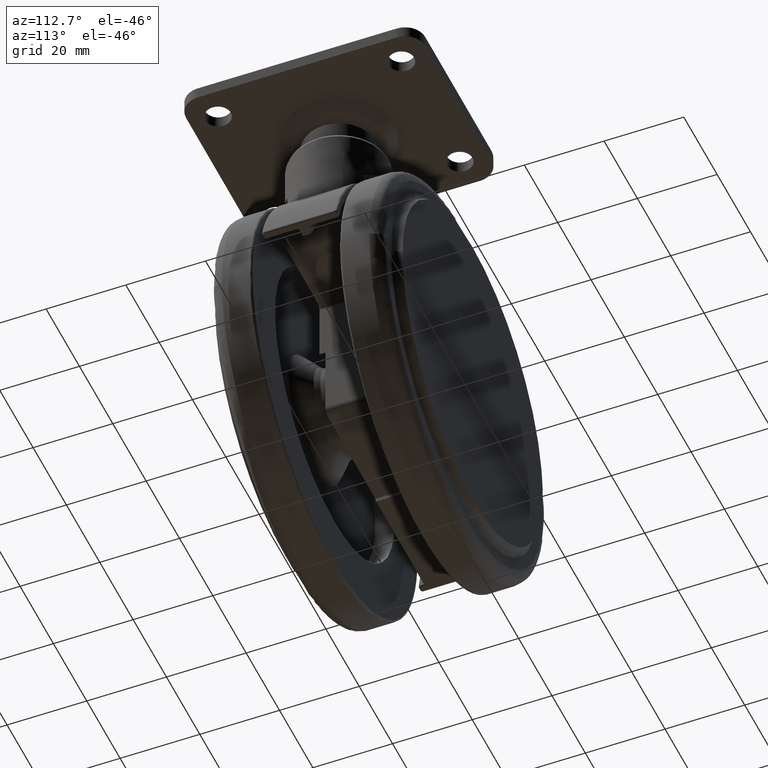
[diagram: clean part render]
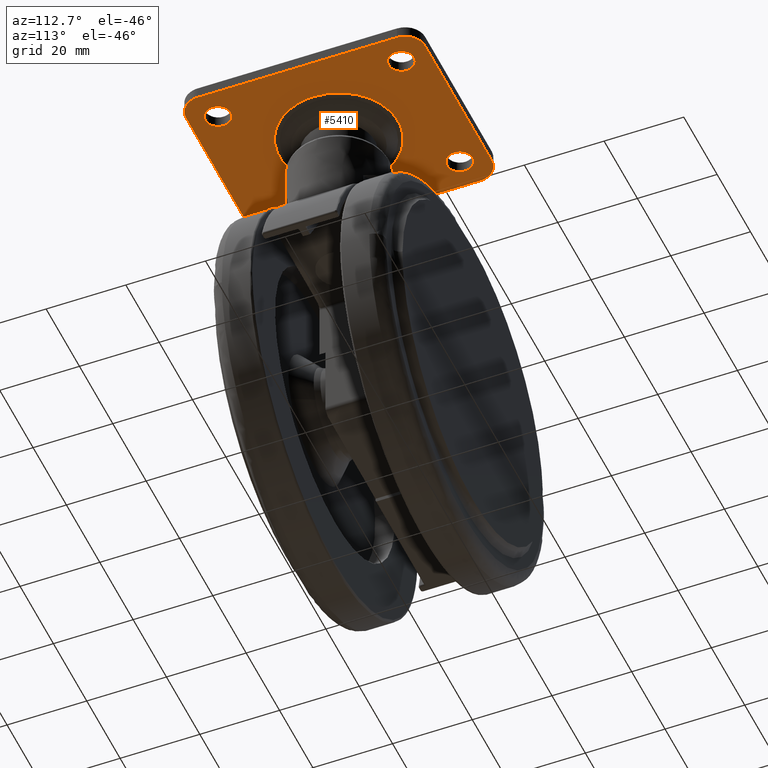
[diagram: same view with one face highlighted and labeled with its STEP entity id]
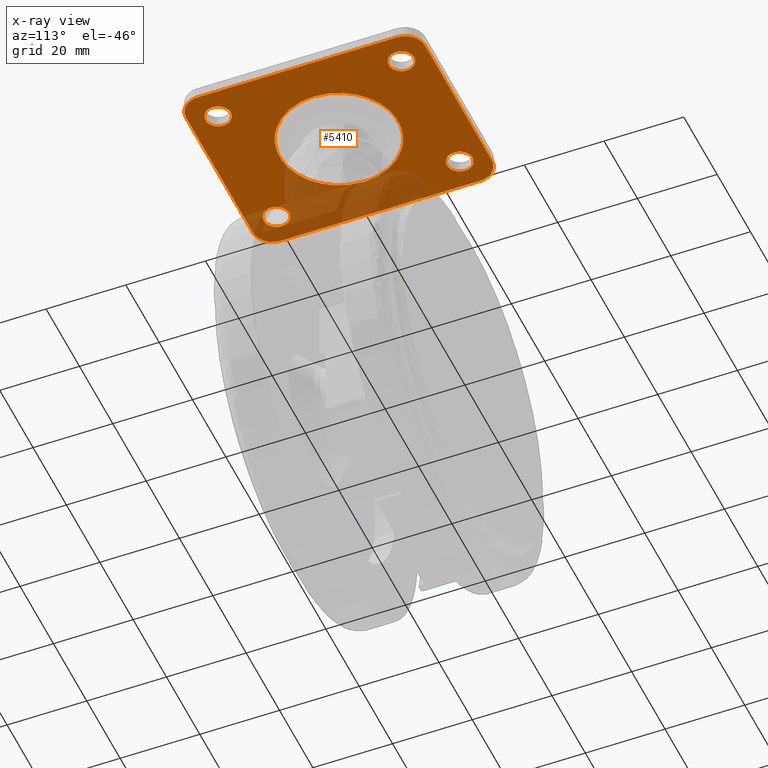
[diagram: x-ray of the same camera — body ghosted, the highlighted face saturated]
A machine part, auxiliary view. The second image highlights one B-rep face of the part: STEP entity #5410.
The next image is the same camera in x-ray: the body ghosted, the highlighted face saturated — about 22% of this face is hidden behind the body in this view.
In plain terms, the highlighted face is a freeform B-spline surface patch.
Its self-contained STEP definition (entity closure, byte-faithful):
#4139=CARTESIAN_POINT('',(-20.699999999999999,23.0,11.000000000000121));
#4140=VERTEX_POINT('',#4139);
#4141=CARTESIAN_POINT('',(-17.751069106818392,19.809864532092501,11.000000000000121));
#4142=VERTEX_POINT('',#4141);
#4143=CARTESIAN_POINT('',(-20.699999999999999,23.0,11.000000000000121));
#4144=CARTESIAN_POINT('',(-20.700000000000006,20.041950427148819,11.000000000000119));
#4145=CARTESIAN_POINT('',(-17.751069106818385,19.809864532092490,11.000000000000124));
#4153=(BOUNDED_CURVE()B_SPLINE_CURVE(2,(#4143,#4144,#4145),.UNSPECIFIED.,.F.,.U.)B_SPLINE_CURVE_WITH_KNOTS((3,3),(0.0,0.236331300606475),.UNSPECIFIED.)CURVE()GEOMETRIC_REPRESENTATION_ITEM()RATIONAL_B_SPLINE_CURVE((1.0,0.723120658636000,0.969723356116946))REPRESENTATION_ITEM(''));
#4154=EDGE_CURVE('',#4140,#4142,#4153,.T.);
#4156=CARTESIAN_POINT('',(-17.248930893181619,26.190135467907499,11.000000000000121));
#4157=VERTEX_POINT('',#4156);
#4158=CARTESIAN_POINT('',(-17.248930893181612,26.190135467907510,11.000000000000119));
#4159=CARTESIAN_POINT('',(-17.374271657329682,26.200000000000003,11.000000000000117));
#4160=CARTESIAN_POINT('',(-17.500000000000000,26.199999999999999,11.000000000000121));
#4161=CARTESIAN_POINT('',(-20.700000000000006,26.200000000000006,11.000000000000119));
#4162=CARTESIAN_POINT('',(-20.699999999999999,23.0,11.000000000000121));
#4170=(BOUNDED_CURVE()B_SPLINE_CURVE(2,(#4158,#4159,#4160,#4161,#4162),.UNSPECIFIED.,.F.,.U.)B_SPLINE_CURVE_WITH_KNOTS((3,2,3),(0.736331300606475,0.750000000000000,1.0),.UNSPECIFIED.)CURVE()GEOMETRIC_REPRESENTATION_ITEM()RATIONAL_B_SPLINE_CURVE((0.969723356116946,0.983986122550548,1.0,0.707106781186548,1.0))REPRESENTATION_ITEM(''));
#4171=EDGE_CURVE('',#4157,#4140,#4170,.T.);
#4238=CARTESIAN_POINT('',(-14.300000000000001,23.0,11.000000000000121));
#4239=VERTEX_POINT('',#4238);
#4240=CARTESIAN_POINT('',(-17.751069106818385,19.809864532092490,11.000000000000124));
#4241=CARTESIAN_POINT('',(-17.625728342670321,19.800000000000004,11.000000000000126));
#4242=CARTESIAN_POINT('',(-17.500000000000000,19.800000000000001,11.000000000000121));
#4243=CARTESIAN_POINT('',(-14.299999999999999,19.799999999999997,11.000000000000119));
#4244=CARTESIAN_POINT('',(-14.300000000000001,23.0,11.000000000000121));
#4252=(BOUNDED_CURVE()B_SPLINE_CURVE(2,(#4240,#4241,#4242,#4243,#4244),.UNSPECIFIED.,.F.,.U.)B_SPLINE_CURVE_WITH_KNOTS((3,2,3),(0.236331300606475,0.250000000000000,0.500000000000000),.UNSPECIFIED.)CURVE()GEOMETRIC_REPRESENTATION_ITEM()RATIONAL_B_SPLINE_CURVE((0.969723356116946,0.983986122550548,1.0,0.707106781186548,1.0))REPRESENTATION_ITEM(''));
#4253=EDGE_CURVE('',#4142,#4239,#4252,.T.);
#4287=CARTESIAN_POINT('',(-14.300000000000001,23.0,11.000000000000121));
#4288=CARTESIAN_POINT('',(-14.300000000000002,25.958049572851177,11.000000000000119));
#4289=CARTESIAN_POINT('',(-17.248930893181612,26.190135467907510,11.000000000000119));
#4297=(BOUNDED_CURVE()B_SPLINE_CURVE(2,(#4287,#4288,#4289),.UNSPECIFIED.,.F.,.U.)B_SPLINE_CURVE_WITH_KNOTS((3,3),(0.500000000000000,0.736331300606475),.UNSPECIFIED.)CURVE()GEOMETRIC_REPRESENTATION_ITEM()RATIONAL_B_SPLINE_CURVE((1.0,0.723120658636000,0.969723356116946))REPRESENTATION_ITEM(''));
#4298=EDGE_CURVE('',#4239,#4157,#4297,.T.);
#4321=CARTESIAN_POINT('',(14.300000000000001,-23.0,11.000000000000121));
#4322=VERTEX_POINT('',#4321);
#4323=CARTESIAN_POINT('',(17.248930893181619,-26.190135467907499,11.000000000000121));
#4324=VERTEX_POINT('',#4323);
#4325=CARTESIAN_POINT('',(14.300000000000001,-23.0,11.000000000000121));
#4326=CARTESIAN_POINT('',(14.300000000000006,-25.958049572851170,11.000000000000121));
#4327=CARTESIAN_POINT('',(17.248930893181615,-26.190135467907503,11.000000000000126));
#4335=(BOUNDED_CURVE()B_SPLINE_CURVE(2,(#4325,#4326,#4327),.UNSPECIFIED.,.F.,.U.)B_SPLINE_CURVE_WITH_KNOTS((3,3),(0.0,0.236331300606475),.UNSPECIFIED.)CURVE()GEOMETRIC_REPRESENTATION_ITEM()RATIONAL_B_SPLINE_CURVE((1.0,0.723120658636000,0.969723356116946))REPRESENTATION_ITEM(''));
#4336=EDGE_CURVE('',#4322,#4324,#4335,.T.);
#4338=CARTESIAN_POINT('',(17.751069106818392,-19.809864532092501,11.000000000000121));
#4339=VERTEX_POINT('',#4338);
#4340=CARTESIAN_POINT('',(17.751069106818385,-19.809864532092487,11.000000000000124));
#4341=CARTESIAN_POINT('',(17.625728342670318,-19.799999999999990,11.000000000000124));
#4342=CARTESIAN_POINT('',(17.500000000000000,-19.800000000000001,11.000000000000121));
#4343=CARTESIAN_POINT('',(14.299999999999999,-19.799999999999997,11.000000000000119));
#4344=CARTESIAN_POINT('',(14.300000000000001,-23.0,11.000000000000121));
#4352=(BOUNDED_CURVE()B_SPLINE_CURVE(2,(#4340,#4341,#4342,#4343,#4344),.UNSPECIFIED.,.F.,.U.)B_SPLINE_CURVE_WITH_KNOTS((3,2,3),(0.736331300606475,0.750000000000000,1.0),.UNSPECIFIED.)CURVE()GEOMETRIC_REPRESENTATION_ITEM()RATIONAL_B_SPLINE_CURVE((0.969723356116946,0.983986122550548,1.0,0.707106781186548,1.0))REPRESENTATION_ITEM(''));
#4353=EDGE_CURVE('',#4339,#4322,#4352,.T.);
#4420=CARTESIAN_POINT('',(20.699999999999999,-23.0,11.000000000000121));
#4421=VERTEX_POINT('',#4420);
#4422=CARTESIAN_POINT('',(17.248930893181608,-26.190135467907499,11.000000000000117));
#4423=CARTESIAN_POINT('',(17.374271657329679,-26.199999999999999,11.000000000000115));
#4424=CARTESIAN_POINT('',(17.500000000000000,-26.199999999999999,11.000000000000121));
#4425=CARTESIAN_POINT('',(20.700000000000006,-26.200000000000006,11.000000000000119));
#4426=CARTESIAN_POINT('',(20.699999999999999,-23.0,11.000000000000121));
#4434=(BOUNDED_CURVE()B_SPLINE_CURVE(2,(#4422,#4423,#4424,#4425,#4426),.UNSPECIFIED.,.F.,.U.)B_SPLINE_CURVE_WITH_KNOTS((3,2,3),(0.236331300606475,0.250000000000000,0.500000000000000),.UNSPECIFIED.)CURVE()GEOMETRIC_REPRESENTATION_ITEM()RATIONAL_B_SPLINE_CURVE((0.969723356116946,0.983986122550548,1.0,0.707106781186548,1.0))REPRESENTATION_ITEM(''));
#4435=EDGE_CURVE('',#4324,#4421,#4434,.T.);
#4469=CARTESIAN_POINT('',(20.699999999999999,-23.0,11.000000000000121));
#4470=CARTESIAN_POINT('',(20.700000000000010,-20.041950427148823,11.000000000000121));
#4471=CARTESIAN_POINT('',(17.751069106818385,-19.809864532092487,11.000000000000124));
#4479=(BOUNDED_CURVE()B_SPLINE_CURVE(2,(#4469,#4470,#4471),.UNSPECIFIED.,.F.,.U.)B_SPLINE_CURVE_WITH_KNOTS((3,3),(0.500000000000000,0.736331300606475),.UNSPECIFIED.)CURVE()GEOMETRIC_REPRESENTATION_ITEM()RATIONAL_B_SPLINE_CURVE((1.0,0.723120658636000,0.969723356116946))REPRESENTATION_ITEM(''));
#4480=EDGE_CURVE('',#4421,#4339,#4479,.T.);
#4503=CARTESIAN_POINT('',(-20.699999999999999,-23.0,11.000000000000121));
#4504=VERTEX_POINT('',#4503);
#4505=CARTESIAN_POINT('',(-17.751069106818392,-26.190135467907499,11.000000000000121));
#4506=VERTEX_POINT('',#4505);
#4507=CARTESIAN_POINT('',(-20.699999999999999,-23.0,11.000000000000121));
#4508=CARTESIAN_POINT('',(-20.700000000000006,-25.958049572851170,11.000000000000119));
#4509=CARTESIAN_POINT('',(-17.751069106818385,-26.190135467907499,11.000000000000124));
#4517=(BOUNDED_CURVE()B_SPLINE_CURVE(2,(#4507,#4508,#4509),.UNSPECIFIED.,.F.,.U.)B_SPLINE_CURVE_WITH_KNOTS((3,3),(0.0,0.236331300606475),.UNSPECIFIED.)CURVE()GEOMETRIC_REPRESENTATION_ITEM()RATIONAL_B_SPLINE_CURVE((1.0,0.723120658636000,0.969723356116946))REPRESENTATION_ITEM(''));
#4518=EDGE_CURVE('',#4504,#4506,#4517,.T.);
#4520=CARTESIAN_POINT('',(-17.248930893181619,-19.809864532092501,11.000000000000121));
#4521=VERTEX_POINT('',#4520);
#4522=CARTESIAN_POINT('',(-17.248930893181612,-19.809864532092501,11.000000000000119));
#4523=CARTESIAN_POINT('',(-17.374271657329682,-19.799999999999997,11.000000000000117));
#4524=CARTESIAN_POINT('',(-17.500000000000000,-19.800000000000001,11.000000000000121));
#4525=CARTESIAN_POINT('',(-20.700000000000006,-19.799999999999997,11.000000000000119));
#4526=CARTESIAN_POINT('',(-20.699999999999999,-23.0,11.000000000000121));
#4534=(BOUNDED_CURVE()B_SPLINE_CURVE(2,(#4522,#4523,#4524,#4525,#4526),.UNSPECIFIED.,.F.,.U.)B_SPLINE_CURVE_WITH_KNOTS((3,2,3),(0.736331300606475,0.750000000000000,1.0),.UNSPECIFIED.)CURVE()GEOMETRIC_REPRESENTATION_ITEM()RATIONAL_B_SPLINE_CURVE((0.969723356116946,0.983986122550548,1.0,0.707106781186548,1.0))REPRESENTATION_ITEM(''));
#4535=EDGE_CURVE('',#4521,#4504,#4534,.T.);
#4602=CARTESIAN_POINT('',(-14.300000000000001,-23.0,11.000000000000121));
#4603=VERTEX_POINT('',#4602);
#4604=CARTESIAN_POINT('',(-17.751069106818385,-26.190135467907499,11.000000000000124));
#4605=CARTESIAN_POINT('',(-17.625728342670321,-26.200000000000006,11.000000000000126));
#4606=CARTESIAN_POINT('',(-17.500000000000000,-26.199999999999999,11.000000000000121));
#4607=CARTESIAN_POINT('',(-14.299999999999999,-26.200000000000006,11.000000000000119));
#4608=CARTESIAN_POINT('',(-14.300000000000001,-23.0,11.000000000000121));
#4616=(BOUNDED_CURVE()B_SPLINE_CURVE(2,(#4604,#4605,#4606,#4607,#4608),.UNSPECIFIED.,.F.,.U.)B_SPLINE_CURVE_WITH_KNOTS((3,2,3),(0.236331300606475,0.250000000000000,0.500000000000000),.UNSPECIFIED.)CURVE()GEOMETRIC_REPRESENTATION_ITEM()RATIONAL_B_SPLINE_CURVE((0.969723356116946,0.983986122550548,1.0,0.707106781186548,1.0))REPRESENTATION_ITEM(''));
#4617=EDGE_CURVE('',#4506,#4603,#4616,.T.);
#4651=CARTESIAN_POINT('',(-14.300000000000001,-23.0,11.000000000000121));
#4652=CARTESIAN_POINT('',(-14.300000000000002,-20.041950427148826,11.000000000000119));
#4653=CARTESIAN_POINT('',(-17.248930893181612,-19.809864532092501,11.000000000000119));
#4661=(BOUNDED_CURVE()B_SPLINE_CURVE(2,(#4651,#4652,#4653),.UNSPECIFIED.,.F.,.U.)B_SPLINE_CURVE_WITH_KNOTS((3,3),(0.500000000000000,0.736331300606475),.UNSPECIFIED.)CURVE()GEOMETRIC_REPRESENTATION_ITEM()RATIONAL_B_SPLINE_CURVE((1.0,0.723120658636000,0.969723356116946))REPRESENTATION_ITEM(''));
#4662=EDGE_CURVE('',#4603,#4521,#4661,.T.);
#4685=CARTESIAN_POINT('',(14.300000000000001,23.0,11.000000000000121));
#4686=VERTEX_POINT('',#4685);
#4687=CARTESIAN_POINT('',(17.248930893181619,19.809864532092501,11.000000000000121));
#4688=VERTEX_POINT('',#4687);
#4689=CARTESIAN_POINT('',(14.300000000000001,23.0,11.000000000000121));
#4690=CARTESIAN_POINT('',(14.300000000000004,20.041950427148830,11.000000000000121));
#4691=CARTESIAN_POINT('',(17.248930893181608,19.809864532092497,11.000000000000117));
#4699=(BOUNDED_CURVE()B_SPLINE_CURVE(2,(#4689,#4690,#4691),.UNSPECIFIED.,.F.,.U.)B_SPLINE_CURVE_WITH_KNOTS((3,3),(0.0,0.236331300606475),.UNSPECIFIED.)CURVE()GEOMETRIC_REPRESENTATION_ITEM()RATIONAL_B_SPLINE_CURVE((1.0,0.723120658636000,0.969723356116946))REPRESENTATION_ITEM(''));
#4700=EDGE_CURVE('',#4686,#4688,#4699,.T.);
#4702=CARTESIAN_POINT('',(17.751069106818392,26.190135467907499,11.000000000000121));
#4703=VERTEX_POINT('',#4702);
#4704=CARTESIAN_POINT('',(17.751069106818385,26.190135467907506,11.000000000000124));
#4705=CARTESIAN_POINT('',(17.625728342670318,26.200000000000006,11.000000000000124));
#4706=CARTESIAN_POINT('',(17.500000000000000,26.199999999999999,11.000000000000121));
#4707=CARTESIAN_POINT('',(14.299999999999999,26.200000000000006,11.000000000000119));
#4708=CARTESIAN_POINT('',(14.300000000000001,23.0,11.000000000000121));
#4716=(BOUNDED_CURVE()B_SPLINE_CURVE(2,(#4704,#4705,#4706,#4707,#4708),.UNSPECIFIED.,.F.,.U.)B_SPLINE_CURVE_WITH_KNOTS((3,2,3),(0.736331300606475,0.750000000000000,1.0),.UNSPECIFIED.)CURVE()GEOMETRIC_REPRESENTATION_ITEM()RATIONAL_B_SPLINE_CURVE((0.969723356116946,0.983986122550548,1.0,0.707106781186548,1.0))REPRESENTATION_ITEM(''));
#4717=EDGE_CURVE('',#4703,#4686,#4716,.T.);
#4784=CARTESIAN_POINT('',(20.699999999999999,23.0,11.000000000000121));
#4785=VERTEX_POINT('',#4784);
#4786=CARTESIAN_POINT('',(17.248930893181608,19.809864532092497,11.000000000000117));
#4787=CARTESIAN_POINT('',(17.374271657329679,19.799999999999994,11.000000000000115));
#4788=CARTESIAN_POINT('',(17.500000000000000,19.800000000000001,11.000000000000121));
#4789=CARTESIAN_POINT('',(20.700000000000006,19.799999999999997,11.000000000000119));
#4790=CARTESIAN_POINT('',(20.699999999999999,23.0,11.000000000000121));
#4798=(BOUNDED_CURVE()B_SPLINE_CURVE(2,(#4786,#4787,#4788,#4789,#4790),.UNSPECIFIED.,.F.,.U.)B_SPLINE_CURVE_WITH_KNOTS((3,2,3),(0.236331300606475,0.250000000000000,0.500000000000000),.UNSPECIFIED.)CURVE()GEOMETRIC_REPRESENTATION_ITEM()RATIONAL_B_SPLINE_CURVE((0.969723356116946,0.983986122550548,1.0,0.707106781186548,1.0))REPRESENTATION_ITEM(''));
#4799=EDGE_CURVE('',#4688,#4785,#4798,.T.);
#4833=CARTESIAN_POINT('',(20.699999999999999,23.0,11.000000000000121));
#4834=CARTESIAN_POINT('',(20.700000000000010,25.958049572851174,11.000000000000121));
#4835=CARTESIAN_POINT('',(17.751069106818385,26.190135467907506,11.000000000000124));
#4843=(BOUNDED_CURVE()B_SPLINE_CURVE(2,(#4833,#4834,#4835),.UNSPECIFIED.,.F.,.U.)B_SPLINE_CURVE_WITH_KNOTS((3,3),(0.500000000000000,0.736331300606475),.UNSPECIFIED.)CURVE()GEOMETRIC_REPRESENTATION_ITEM()RATIONAL_B_SPLINE_CURVE((1.0,0.723120658636000,0.969723356116946))REPRESENTATION_ITEM(''));
#4844=EDGE_CURVE('',#4785,#4703,#4843,.T.);
#4974=CARTESIAN_POINT('',(8.913127380187419,-11.949170591020779,11.0));
#4975=VERTEX_POINT('',#4974);
#4989=CARTESIAN_POINT('',(-14.907263920344599,0.0,11.0));
#4990=VERTEX_POINT('',#4989);
#4991=CARTESIAN_POINT('',(-14.907263920344599,0.0,11.0));
#4992=CARTESIAN_POINT('',(-14.907263920757288,-14.907263919791353,10.999999999999998));
#4993=CARTESIAN_POINT('',(-1.235359E-009,-14.907263918688450,11.0));
#4994=CARTESIAN_POINT('',(4.947430461365925,-14.907263918322414,10.999999999999996));
#4995=CARTESIAN_POINT('',(8.913127380187419,-11.949170591020787,11.0));
#5003=(BOUNDED_CURVE()B_SPLINE_CURVE(2,(#4991,#4992,#4993,#4994,#4995),.UNSPECIFIED.,.F.,.U.)B_SPLINE_CURVE_WITH_KNOTS((3,2,3),(0.0,0.250000000000000,0.353156604496455),.UNSPECIFIED.)CURVE()GEOMETRIC_REPRESENTATION_ITEM()RATIONAL_B_SPLINE_CURVE((1.0,0.707106781186548,1.0,0.879144520268668,0.858025367928331))REPRESENTATION_ITEM(''));
#5004=EDGE_CURVE('',#4990,#4975,#5003,.T.);
#5006=CARTESIAN_POINT('',(-8.913127380187417,11.949170591020779,11.0));
#5007=VERTEX_POINT('',#5006);
#5008=CARTESIAN_POINT('',(-8.913127380187417,11.949170591020785,11.0));
#5009=CARTESIAN_POINT('',(-14.907263919521919,7.478023235491324,11.0));
#5010=CARTESIAN_POINT('',(-14.907263920344599,0.0,11.0));
#5018=(BOUNDED_CURVE()B_SPLINE_CURVE(2,(#5008,#5009,#5010),.UNSPECIFIED.,.F.,.U.)B_SPLINE_CURVE_WITH_KNOTS((3,3),(0.853156604496455,1.0),.UNSPECIFIED.)CURVE()GEOMETRIC_REPRESENTATION_ITEM()RATIONAL_B_SPLINE_CURVE((0.858025367928331,0.827962260917880,1.0))REPRESENTATION_ITEM(''));
#5019=EDGE_CURVE('',#5007,#4990,#5018,.T.);
#5072=CARTESIAN_POINT('',(14.907263920344599,0.0,11.0));
#5073=VERTEX_POINT('',#5072);
#5074=CARTESIAN_POINT('',(14.907263920344599,0.0,11.0));
#5075=CARTESIAN_POINT('',(14.907263920757288,14.907263919791353,11.0));
#5076=CARTESIAN_POINT('',(1.235362E-009,14.907263918688450,11.0));
#5077=CARTESIAN_POINT('',(-4.947430461365923,14.907263918322425,11.000000000000002));
#5078=CARTESIAN_POINT('',(-8.913127380187417,11.949170591020785,11.0));
#5086=(BOUNDED_CURVE()B_SPLINE_CURVE(2,(#5074,#5075,#5076,#5077,#5078),.UNSPECIFIED.,.F.,.U.)B_SPLINE_CURVE_WITH_KNOTS((3,2,3),(0.500000000000000,0.750000000000000,0.853156604496455),.UNSPECIFIED.)CURVE()GEOMETRIC_REPRESENTATION_ITEM()RATIONAL_B_SPLINE_CURVE((1.0,0.707106781186548,1.0,0.879144520268668,0.858025367928331))REPRESENTATION_ITEM(''));
#5087=EDGE_CURVE('',#5073,#5007,#5086,.T.);
#5089=CARTESIAN_POINT('',(8.913127380187419,-11.949170591020787,11.0));
#5090=CARTESIAN_POINT('',(14.907263919521920,-7.478023235491325,10.999999999999998));
#5091=CARTESIAN_POINT('',(14.907263920344599,0.0,11.0));
#5099=(BOUNDED_CURVE()B_SPLINE_CURVE(2,(#5089,#5090,#5091),.UNSPECIFIED.,.F.,.U.)B_SPLINE_CURVE_WITH_KNOTS((3,3),(0.353156604496455,0.500000000000000),.UNSPECIFIED.)CURVE()GEOMETRIC_REPRESENTATION_ITEM()RATIONAL_B_SPLINE_CURVE((0.858025367928331,0.827962260917880,1.0))REPRESENTATION_ITEM(''));
#5100=EDGE_CURVE('',#4975,#5073,#5099,.T.);
#5285=CARTESIAN_POINT('',(-27.497499903090301,32.996999883708362,11.0));
#5286=CARTESIAN_POINT('',(27.497501244194812,32.996999883708362,11.0));
#5287=CARTESIAN_POINT('',(-27.497499903090301,-32.997001493033771,11.0));
#5288=CARTESIAN_POINT('',(27.497501244194812,-32.997001493033771,11.0));
#5289=B_SPLINE_SURFACE_WITH_KNOTS('',1,1,((#5285,#5287),(#5286,#5288)),.UNSPECIFIED.,.F.,.F.,.U.,(2,2),(2,2),(0.0,54.995001147285109),(0.0,65.994001376742119),.UNSPECIFIED.);
#5290=CARTESIAN_POINT('',(-25.0,-25.0,11.000000000000121));
#5291=VERTEX_POINT('',#5290);
#5292=CARTESIAN_POINT('',(-20.0,-30.0,11.000000000000121));
#5293=VERTEX_POINT('',#5292);
#5294=CARTESIAN_POINT('',(-25.0,-25.0,11.000000000000121));
#5295=CARTESIAN_POINT('',(-25.0,-30.000000000000004,11.000000000000119));
#5296=CARTESIAN_POINT('',(-20.0,-30.0,11.000000000000121));
#5304=(BOUNDED_CURVE()B_SPLINE_CURVE(2,(#5294,#5295,#5296),.UNSPECIFIED.,.F.,.U.)CURVE()GEOMETRIC_REPRESENTATION_ITEM()QUASI_UNIFORM_CURVE()RATIONAL_B_SPLINE_CURVE((1.0,0.707106781186548,1.0))REPRESENTATION_ITEM(''));
#5305=EDGE_CURVE('',#5291,#5293,#5304,.T.);
#5306=ORIENTED_EDGE('',*,*,#5305,.F.);
#5307=CARTESIAN_POINT('',(-25.0,24.999999999996898,11.000000000000121));
#5308=VERTEX_POINT('',#5307);
#5309=CARTESIAN_POINT('',(-25.0,24.999999999996898,11.000000000000121));
#5310=CARTESIAN_POINT('',(-25.0,-25.0,11.000000000000121));
#5311=QUASI_UNIFORM_CURVE('',1,(#5309,#5310),.UNSPECIFIED.,.F.,.U.);
#5312=EDGE_CURVE('',#5308,#5291,#5311,.T.);
#5313=ORIENTED_EDGE('',*,*,#5312,.F.);
#5314=CARTESIAN_POINT('',(-20.0,30.0,11.000000000000121));
#5315=VERTEX_POINT('',#5314);
#5316=CARTESIAN_POINT('',(-20.0,30.0,11.000000000000121));
#5317=CARTESIAN_POINT('',(-25.0,30.000000000000004,11.000000000000119));
#5318=CARTESIAN_POINT('',(-25.0,25.0,11.000000000000121));
#5326=(BOUNDED_CURVE()B_SPLINE_CURVE(2,(#5316,#5317,#5318),.UNSPECIFIED.,.F.,.U.)CURVE()GEOMETRIC_REPRESENTATION_ITEM()QUASI_UNIFORM_CURVE()RATIONAL_B_SPLINE_CURVE((1.0,0.707106781186548,1.0))REPRESENTATION_ITEM(''));
#5327=EDGE_CURVE('',#5315,#5308,#5326,.T.);
#5328=ORIENTED_EDGE('',*,*,#5327,.F.);
#5329=CARTESIAN_POINT('',(19.999999999995602,30.0,11.000000000000121));
#5330=VERTEX_POINT('',#5329);
#5331=CARTESIAN_POINT('',(19.999999999995602,30.0,11.000000000000121));
#5332=CARTESIAN_POINT('',(-20.0,30.0,11.000000000000121));
#5333=QUASI_UNIFORM_CURVE('',1,(#5331,#5332),.UNSPECIFIED.,.F.,.U.);
#5334=EDGE_CURVE('',#5330,#5315,#5333,.T.);
#5335=ORIENTED_EDGE('',*,*,#5334,.F.);
#5336=CARTESIAN_POINT('',(25.0,25.0,11.000000000000121));
#5337=VERTEX_POINT('',#5336);
#5338=CARTESIAN_POINT('',(25.0,25.0,11.000000000000121));
#5339=CARTESIAN_POINT('',(25.000234012888459,25.511356818733219,11.000000000000080));
#5340=CARTESIAN_POINT('',(24.879713234008690,26.288407414211282,11.000000000000190));
#5341=CARTESIAN_POINT('',(24.423252494458140,27.409679669292782,11.000000000000060));
#5342=CARTESIAN_POINT('',(23.764340594360949,28.383154960149220,11.000000000000149));
#5343=CARTESIAN_POINT('',(22.836539579755641,29.173539329386401,11.000000000000110));
#5344=CARTESIAN_POINT('',(21.903663280149040,29.650096709183320,11.000000000000121));
#5345=CARTESIAN_POINT('',(21.002168838692690,29.929648633878472,11.000000000000121));
#5346=CARTESIAN_POINT('',(20.368151333655060,30.000063278251581,11.000000000000121));
#5347=CARTESIAN_POINT('',(19.999999999995602,30.0,11.000000000000121));
#5348=B_SPLINE_CURVE_WITH_KNOTS('',3,(#5338,#5339,#5340,#5341,#5342,#5343,#5344,#5345,#5346,#5347),.UNSPECIFIED.,.F.,.U.,(4,1,1,1,1,1,1,4),(0.000000164833382,1.533979505970398,2.331671193588376,3.620223954998675,5.031463781892547,5.951883571084361,6.749582671155363,7.854030914393480),.UNSPECIFIED.);
#5349=EDGE_CURVE('',#5337,#5330,#5348,.T.);
#5350=ORIENTED_EDGE('',*,*,#5349,.F.);
#5351=CARTESIAN_POINT('',(25.0,-25.0,11.000000000000121));
#5352=VERTEX_POINT('',#5351);
#5353=CARTESIAN_POINT('',(25.0,-25.0,11.000000000000121));
#5354=CARTESIAN_POINT('',(25.0,25.0,11.000000000000121));
#5355=QUASI_UNIFORM_CURVE('',1,(#5353,#5354),.UNSPECIFIED.,.F.,.U.);
#5356=EDGE_CURVE('',#5352,#5337,#5355,.T.);
#5357=ORIENTED_EDGE('',*,*,#5356,.F.);
#5358=CARTESIAN_POINT('',(20.0,-30.0,11.000000000000121));
#5359=VERTEX_POINT('',#5358);
#5360=CARTESIAN_POINT('',(20.0,-30.0,11.000000000000121));
#5361=CARTESIAN_POINT('',(25.0,-30.000000000000004,11.000000000000119));
#5362=CARTESIAN_POINT('',(25.0,-25.0,11.000000000000121));
#5370=(BOUNDED_CURVE()B_SPLINE_CURVE(2,(#5360,#5361,#5362),.UNSPECIFIED.,.F.,.U.)CURVE()GEOMETRIC_REPRESENTATION_ITEM()QUASI_UNIFORM_CURVE()RATIONAL_B_SPLINE_CURVE((1.0,0.707106781186548,1.0))REPRESENTATION_ITEM(''));
#5371=EDGE_CURVE('',#5359,#5352,#5370,.T.);
#5372=ORIENTED_EDGE('',*,*,#5371,.F.);
#5373=CARTESIAN_POINT('',(-20.0,-30.0,11.000000000000121));
#5374=CARTESIAN_POINT('',(20.0,-30.0,11.000000000000121));
#5375=QUASI_UNIFORM_CURVE('',1,(#5373,#5374),.UNSPECIFIED.,.F.,.U.);
#5376=EDGE_CURVE('',#5293,#5359,#5375,.T.);
#5377=ORIENTED_EDGE('',*,*,#5376,.F.);
#5378=EDGE_LOOP('',(#5306,#5313,#5328,#5335,#5350,#5357,#5372,#5377));
#5379=FACE_OUTER_BOUND('',#5378,.T.);
#5380=ORIENTED_EDGE('',*,*,#5087,.T.);
#5381=ORIENTED_EDGE('',*,*,#5019,.T.);
#5382=ORIENTED_EDGE('',*,*,#5004,.T.);
#5383=ORIENTED_EDGE('',*,*,#5100,.T.);
#5384=EDGE_LOOP('',(#5380,#5381,#5382,#5383));
#5385=FACE_BOUND('',#5384,.T.);
#5386=ORIENTED_EDGE('',*,*,#4844,.T.);
#5387=ORIENTED_EDGE('',*,*,#4717,.T.);
#5388=ORIENTED_EDGE('',*,*,#4700,.T.);
#5389=ORIENTED_EDGE('',*,*,#4799,.T.);
#5390=EDGE_LOOP('',(#5386,#5387,#5388,#5389));
#5391=FACE_BOUND('',#5390,.T.);
#5392=ORIENTED_EDGE('',*,*,#4662,.T.);
#5393=ORIENTED_EDGE('',*,*,#4535,.T.);
#5394=ORIENTED_EDGE('',*,*,#4518,.T.);
#5395=ORIENTED_EDGE('',*,*,#4617,.T.);
#5396=EDGE_LOOP('',(#5392,#5393,#5394,#5395));
#5397=FACE_BOUND('',#5396,.T.);
#5398=ORIENTED_EDGE('',*,*,#4480,.T.);
#5399=ORIENTED_EDGE('',*,*,#4353,.T.);
#5400=ORIENTED_EDGE('',*,*,#4336,.T.);
#5401=ORIENTED_EDGE('',*,*,#4435,.T.);
#5402=EDGE_LOOP('',(#5398,#5399,#5400,#5401));
#5403=FACE_BOUND('',#5402,.T.);
#5404=ORIENTED_EDGE('',*,*,#4298,.T.);
#5405=ORIENTED_EDGE('',*,*,#4171,.T.);
#5406=ORIENTED_EDGE('',*,*,#4154,.T.);
#5407=ORIENTED_EDGE('',*,*,#4253,.T.);
#5408=EDGE_LOOP('',(#5404,#5405,#5406,#5407));
#5409=FACE_BOUND('',#5408,.T.);
#5410=ADVANCED_FACE('',(#5379,#5385,#5391,#5397,#5403,#5409),#5289,.T.);